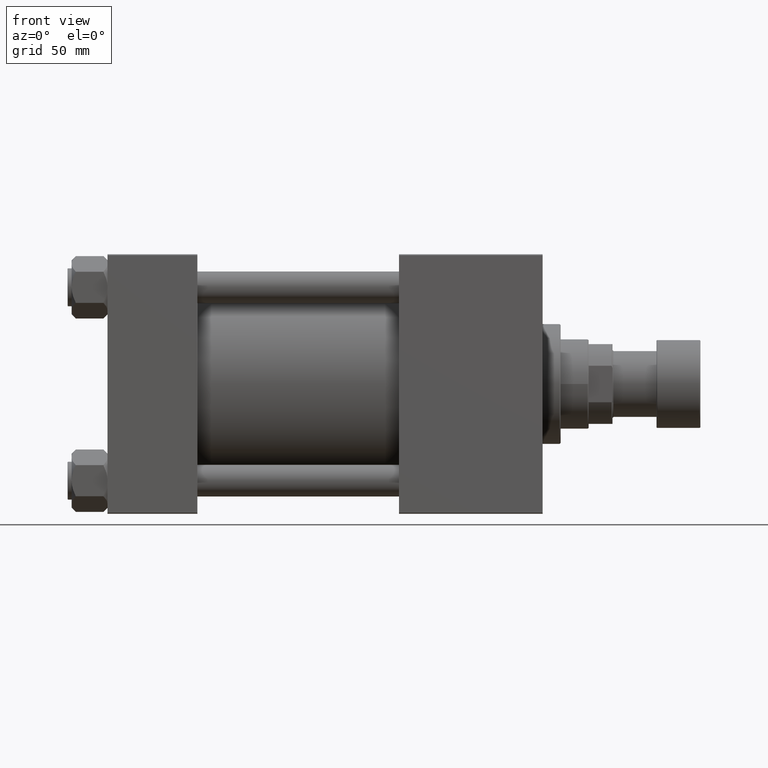
[diagram: clean part render]
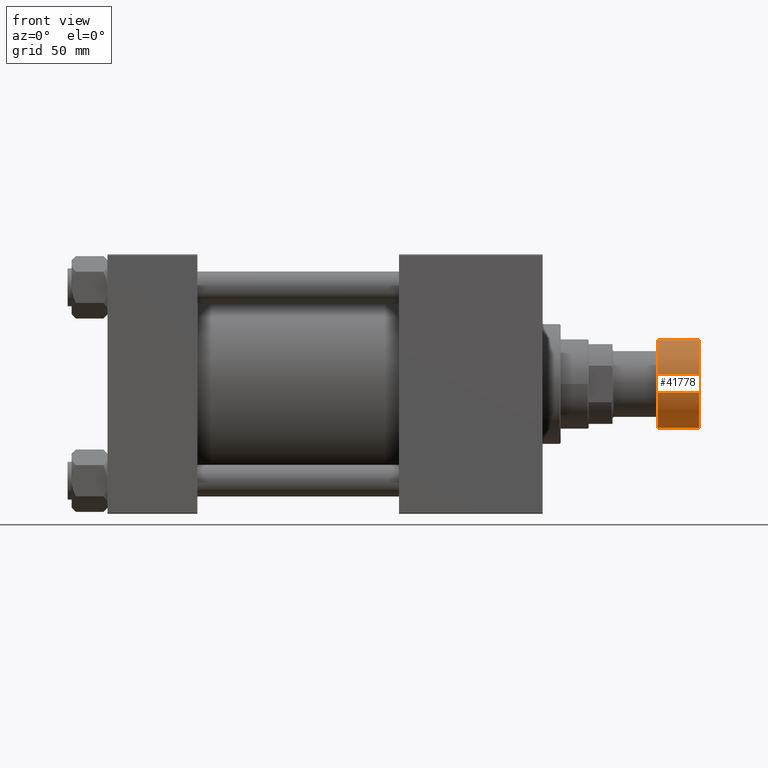
[diagram: same view with one face highlighted and labeled with its STEP entity id]
A machine part, front view. The second image highlights one B-rep face of the part: STEP entity #41778.
In plain terms, the highlighted cylindrical surface (partial cylindrical patch) has radius 22 mm, axis along (1, 0, 0).
Its self-contained STEP definition (entity closure, byte-faithful):
#320 = EDGE_CURVE ( 'NONE', #34976, #20869, #19223, .T. ) ;
#1678 = ORIENTED_EDGE ( 'NONE', *, *, #7667, .F. ) ;
#2092 = VERTEX_POINT ( 'NONE', #8418 ) ;
#2257 = AXIS2_PLACEMENT_3D ( 'NONE', #46358, #37574, #6444 ) ;
#3431 = CARTESIAN_POINT ( 'NONE',  ( 22.00000000000000000, 0.000000000000000000, -22.00000000000000000 ) ) ;
#3462 = FACE_OUTER_BOUND ( 'NONE', #20372, .T. ) ;
#4385 = CIRCLE ( 'NONE', #19235, 22.00000000000000000 ) ;
#5105 = EDGE_CURVE ( 'NONE', #20869, #2092, #4385, .T. ) ;
#5311 = DIRECTION ( 'NONE',  ( -0.000000000000000000, -0.000000000000000000, -1.000000000000000000 ) ) ;
#5550 = CIRCLE ( 'NONE', #2257, 22.00000000000000000 ) ;
#6444 = DIRECTION ( 'NONE',  ( 1.000000000000000000, 0.000000000000000000, 0.000000000000000000 ) ) ;
#7667 = EDGE_CURVE ( 'NONE', #11102, #2092, #30579, .T. ) ;
#8418 = CARTESIAN_POINT ( 'NONE',  ( -22.00000000000000000, 2.694222958124176809E-15, -0.5000000000000004441 ) ) ;
#9685 = DIRECTION ( 'NONE',  ( 1.000000000000000000, 0.000000000000000000, 0.000000000000000000 ) ) ;
#10756 = AXIS2_PLACEMENT_3D ( 'NONE', #27801, #27024, #43644 ) ;
#10862 = DIRECTION ( 'NONE',  ( 0.000000000000000000, 0.000000000000000000, 1.000000000000000000 ) ) ;
#11102 = VERTEX_POINT ( 'NONE', #37020 ) ;
#11471 = CYLINDRICAL_SURFACE ( 'NONE', #10756, 22.00000000000000000 ) ;
#16261 = EDGE_CURVE ( 'NONE', #11102, #34976, #5550, .T. ) ;
#19223 = LINE ( 'NONE', #3431, #38262 ) ;
#19235 = AXIS2_PLACEMENT_3D ( 'NONE', #48355, #5311, #9685 ) ;
#19839 = ORIENTED_EDGE ( 'NONE', *, *, #16261, .T. ) ;
#20372 = EDGE_LOOP ( 'NONE', ( #1678, #19839, #48409, #31614 ) ) ;
#20869 = VERTEX_POINT ( 'NONE', #36403 ) ;
#27024 = DIRECTION ( 'NONE',  ( 0.000000000000000000, 0.000000000000000000, 1.000000000000000000 ) ) ;
#27801 = CARTESIAN_POINT ( 'NONE',  ( 0.000000000000000000, 0.000000000000000000, -22.00000000000000000 ) ) ;
#30579 = LINE ( 'NONE', #46386, #47480 ) ;
#31614 = ORIENTED_EDGE ( 'NONE', *, *, #5105, .T. ) ;
#32872 = CARTESIAN_POINT ( 'NONE',  ( 22.00000000000000000, 0.000000000000000000, -21.50000000000000000 ) ) ;
#34976 = VERTEX_POINT ( 'NONE', #32872 ) ;
#36403 = CARTESIAN_POINT ( 'NONE',  ( 22.00000000000000000, 0.000000000000000000, -0.5000000000000004441 ) ) ;
#37020 = CARTESIAN_POINT ( 'NONE',  ( -22.00000000000000000, 2.694222958124176809E-15, -21.50000000000000000 ) ) ;
#37574 = DIRECTION ( 'NONE',  ( 0.000000000000000000, 0.000000000000000000, 1.000000000000000000 ) ) ;
#38262 = VECTOR ( 'NONE', #46200, 1000.000000000000000 ) ;
#41778 = ADVANCED_FACE ( 'NONE', ( #3462 ), #11471, .T. ) ;
#43644 = DIRECTION ( 'NONE',  ( 1.000000000000000000, 0.000000000000000000, 0.000000000000000000 ) ) ;
#46200 = DIRECTION ( 'NONE',  ( 0.000000000000000000, 0.000000000000000000, 1.000000000000000000 ) ) ;
#46358 = CARTESIAN_POINT ( 'NONE',  ( 0.000000000000000000, 0.000000000000000000, -21.50000000000000000 ) ) ;
#46386 = CARTESIAN_POINT ( 'NONE',  ( -22.00000000000000000, 2.694222958124176809E-15, -22.00000000000000000 ) ) ;
#47480 = VECTOR ( 'NONE', #10862, 1000.000000000000000 ) ;
#48355 = CARTESIAN_POINT ( 'NONE',  ( 0.000000000000000000, 0.000000000000000000, -0.5000000000000004441 ) ) ;
#48409 = ORIENTED_EDGE ( 'NONE', *, *, #320, .T. ) ;